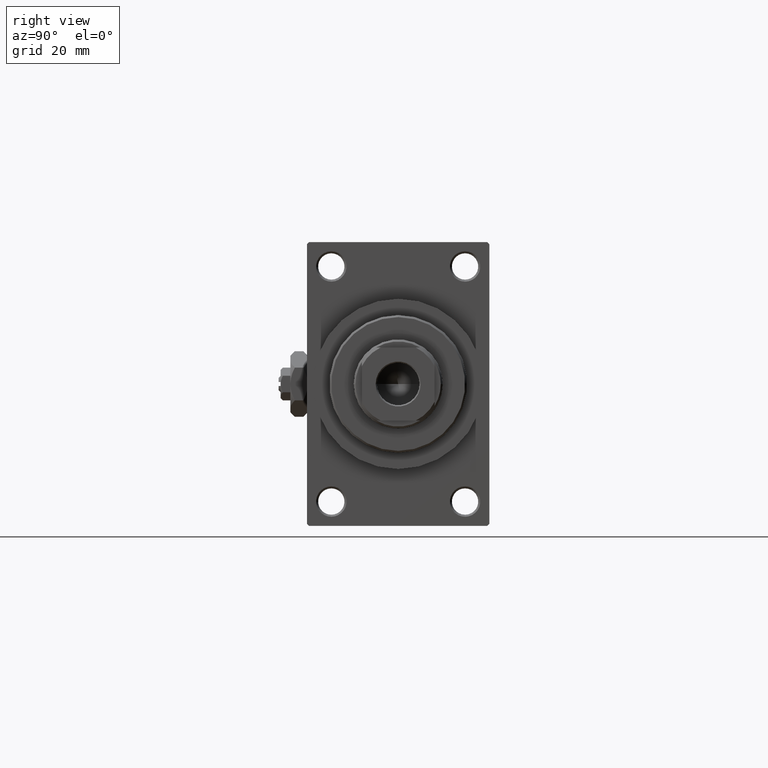
[diagram: clean part render]
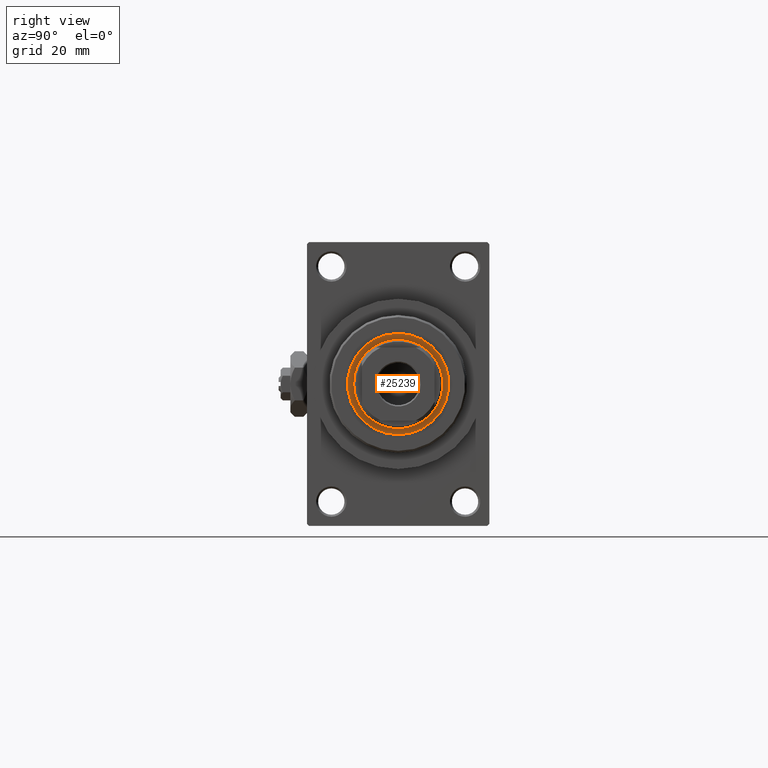
[diagram: same view with one face highlighted and labeled with its STEP entity id]
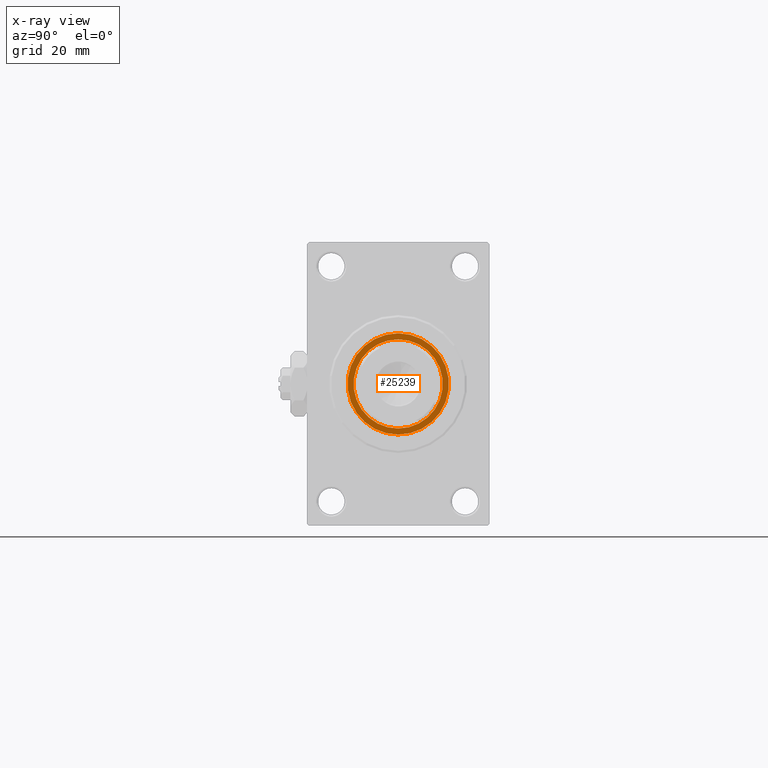
[diagram: x-ray of the same camera — body ghosted, the highlighted face saturated]
A machine part, right view. The second image highlights one B-rep face of the part: STEP entity #25239.
The next image is the same camera in x-ray: the body ghosted, the highlighted face saturated — about 0% of this face is hidden behind the body in this view.
In plain terms, the highlighted planar face has unit normal (1, -0, -0).
Its self-contained STEP definition (entity closure, byte-faithful):
#360 = EDGE_CURVE ( 'NONE', #14570, #46935, #44300, .T. ) ;
#1195 = DIRECTION ( 'NONE',  ( 1.000000000000000000, 0.000000000000000000, 0.000000000000000000 ) ) ;
#1420 = ORIENTED_EDGE ( 'NONE', *, *, #360, .T. ) ;
#1630 = CARTESIAN_POINT ( 'NONE',  ( 0.000000000000000000, 0.000000000000000000, 54.76000000000000512 ) ) ;
#4940 = CARTESIAN_POINT ( 'NONE',  ( 12.50000000000000000, 0.000000000000000000, 54.76000000000000512 ) ) ;
#6572 = DIRECTION ( 'NONE',  ( 0.000000000000000000, 0.000000000000000000, 1.000000000000000000 ) ) ;
#7125 = AXIS2_PLACEMENT_3D ( 'NONE', #1630, #9777, #16700 ) ;
#8518 = DIRECTION ( 'NONE',  ( 1.000000000000000000, 0.000000000000000000, 0.000000000000000000 ) ) ;
#8758 = CARTESIAN_POINT ( 'NONE',  ( 0.000000000000000000, 0.000000000000000000, 54.76000000000000512 ) ) ;
#9572 = EDGE_CURVE ( 'NONE', #46935, #14570, #13117, .T. ) ;
#9762 = DIRECTION ( 'NONE',  ( -0.000000000000000000, -0.000000000000000000, -1.000000000000000000 ) ) ;
#9777 = DIRECTION ( 'NONE',  ( 0.000000000000000000, 0.000000000000000000, 1.000000000000000000 ) ) ;
#10016 = FACE_BOUND ( 'NONE', #22041, .T. ) ;
#12853 = CARTESIAN_POINT ( 'NONE',  ( -12.50000000000000000, 1.530808498934191521E-15, 54.76000000000000512 ) ) ;
#13117 = CIRCLE ( 'NONE', #17836, 12.50000000000000000 ) ;
#13178 = CARTESIAN_POINT ( 'NONE',  ( 11.00000000000000000, 0.000000000000000000, 54.76000000000000512 ) ) ;
#13409 = CIRCLE ( 'NONE', #39407, 11.00000000000000000 ) ;
#14347 = CARTESIAN_POINT ( 'NONE',  ( -11.00000000000000000, 1.347111479062088405E-15, 54.76000000000000512 ) ) ;
#14384 = AXIS2_PLACEMENT_3D ( 'NONE', #8758, #19870, #8518 ) ;
#14570 = VERTEX_POINT ( 'NONE', #4940 ) ;
#16700 = DIRECTION ( 'NONE',  ( 1.000000000000000000, 0.000000000000000000, -0.000000000000000000 ) ) ;
#17184 = FACE_OUTER_BOUND ( 'NONE', #32958, .T. ) ;
#17836 = AXIS2_PLACEMENT_3D ( 'NONE', #33482, #6572, #48513 ) ;
#17902 = AXIS2_PLACEMENT_3D ( 'NONE', #25064, #9762, #39843 ) ;
#19870 = DIRECTION ( 'NONE',  ( 0.000000000000000000, 0.000000000000000000, 1.000000000000000000 ) ) ;
#21370 = PLANE ( 'NONE',  #7125 ) ;
#22041 = EDGE_LOOP ( 'NONE', ( #30886, #33043 ) ) ;
#22168 = VERTEX_POINT ( 'NONE', #13178 ) ;
#23751 = EDGE_CURVE ( 'NONE', #41021, #22168, #13409, .T. ) ;
#25064 = CARTESIAN_POINT ( 'NONE',  ( 0.000000000000000000, 0.000000000000000000, 54.76000000000000512 ) ) ;
#25239 = ADVANCED_FACE ( 'NONE', ( #17184, #10016 ), #21370, .T. ) ;
#30731 = ORIENTED_EDGE ( 'NONE', *, *, #9572, .T. ) ;
#30886 = ORIENTED_EDGE ( 'NONE', *, *, #47473, .T. ) ;
#32958 = EDGE_LOOP ( 'NONE', ( #1420, #30731 ) ) ;
#33043 = ORIENTED_EDGE ( 'NONE', *, *, #23751, .T. ) ;
#33482 = CARTESIAN_POINT ( 'NONE',  ( 0.000000000000000000, 0.000000000000000000, 54.76000000000000512 ) ) ;
#34287 = CARTESIAN_POINT ( 'NONE',  ( 0.000000000000000000, 0.000000000000000000, 54.76000000000000512 ) ) ;
#34768 = DIRECTION ( 'NONE',  ( -0.000000000000000000, -0.000000000000000000, -1.000000000000000000 ) ) ;
#37577 = CIRCLE ( 'NONE', #17902, 11.00000000000000000 ) ;
#39407 = AXIS2_PLACEMENT_3D ( 'NONE', #34287, #34768, #1195 ) ;
#39843 = DIRECTION ( 'NONE',  ( 1.000000000000000000, 0.000000000000000000, 0.000000000000000000 ) ) ;
#41021 = VERTEX_POINT ( 'NONE', #14347 ) ;
#44300 = CIRCLE ( 'NONE', #14384, 12.50000000000000000 ) ;
#46935 = VERTEX_POINT ( 'NONE', #12853 ) ;
#47473 = EDGE_CURVE ( 'NONE', #22168, #41021, #37577, .T. ) ;
#48513 = DIRECTION ( 'NONE',  ( 1.000000000000000000, 0.000000000000000000, 0.000000000000000000 ) ) ;